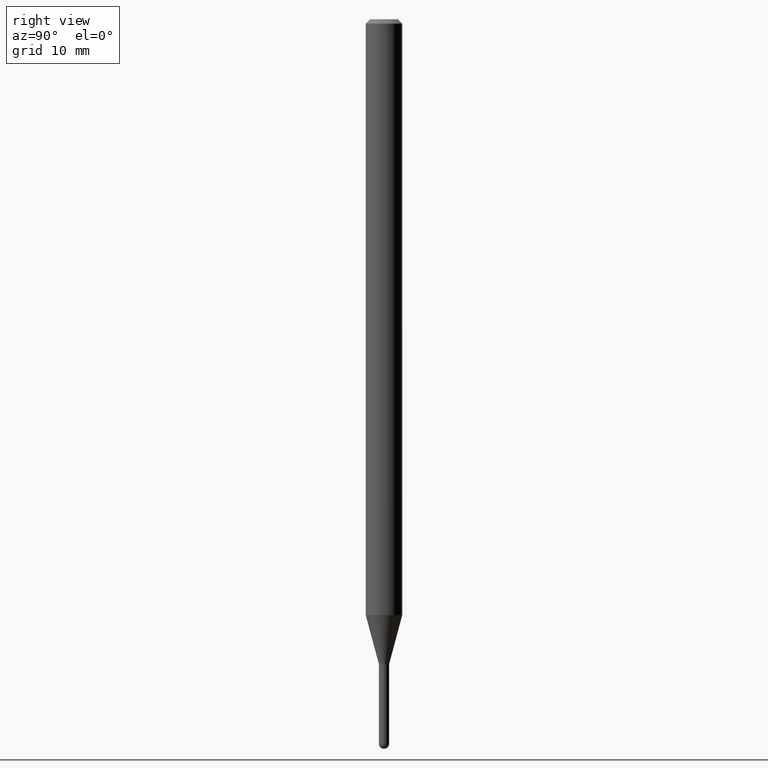
[diagram: clean part render]
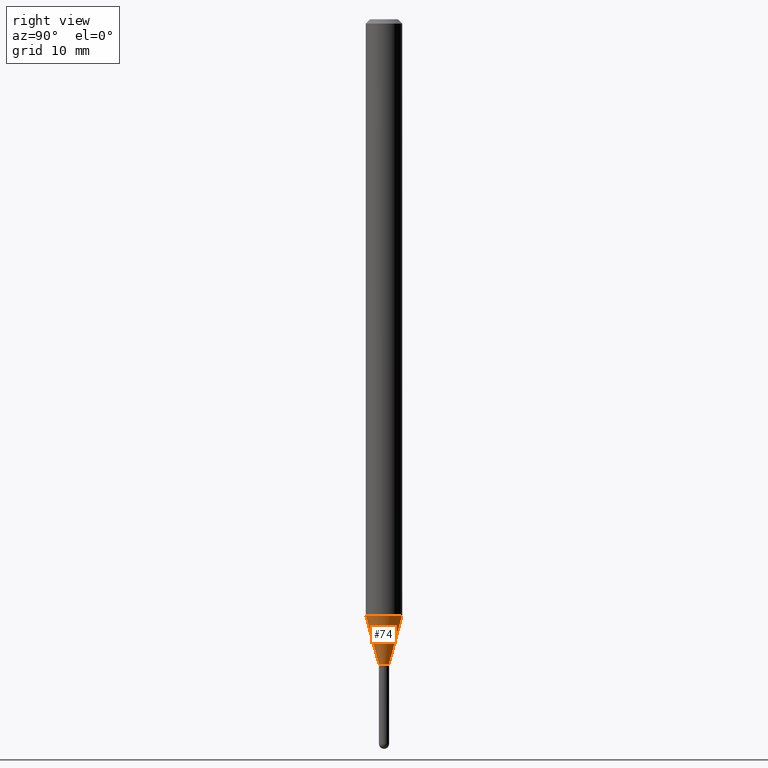
[diagram: same view with one face highlighted and labeled with its STEP entity id]
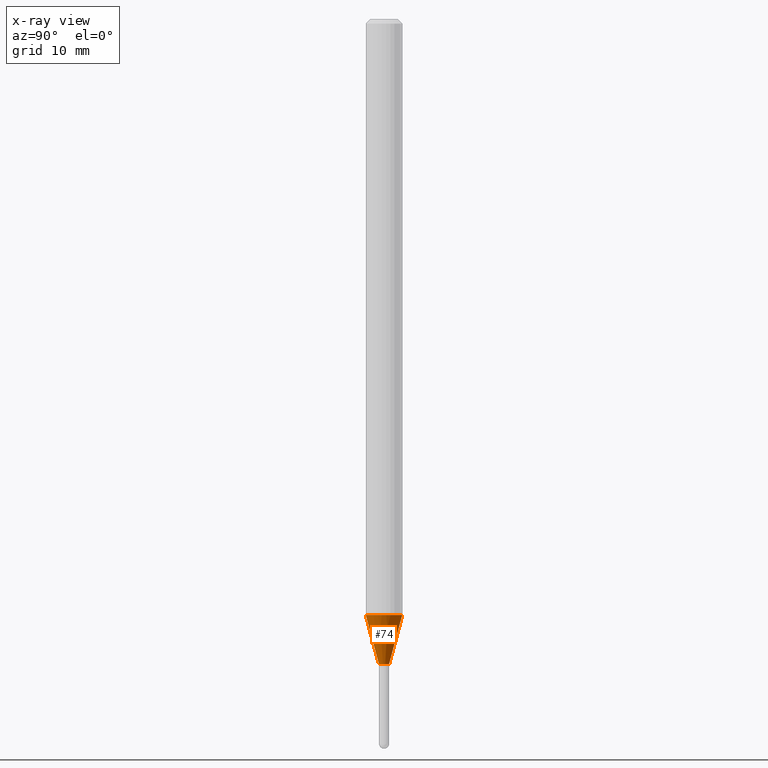
[diagram: x-ray of the same camera — body ghosted, the highlighted face saturated]
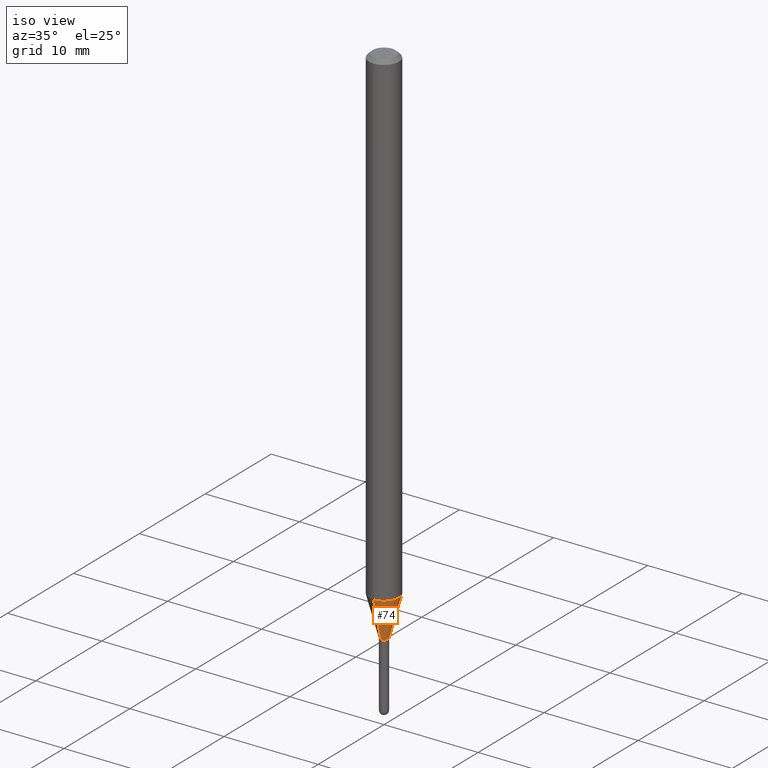
[diagram: same view with one face highlighted and labeled with its STEP entity id]
A machine part, right view. The second image highlights one B-rep face of the part: STEP entity #74.
The next image is the same camera in x-ray: the body ghosted, the highlighted face saturated — about 0% of this face is hidden behind the body in this view.
A second angle (iso view) of the same face is appended — the face is thin or edge-on in the first view.
In plain terms, the highlighted conical surface has half-angle 15 deg.
Its self-contained STEP definition (entity closure, byte-faithful):
#40 = VERTEX_POINT ( 'NONE', #492 ) ;
#48 = DIRECTION ( 'NONE',  ( 1.839019923739599921E-15, 0.2588190451025249028, 0.9659258262890670910 ) ) ;
#62 = EDGE_CURVE ( 'NONE', #181, #135, #384, .T. ) ;
#74 = ADVANCED_FACE ( 'NONE', ( #442 ), #100, .T. ) ;
#95 = CARTESIAN_POINT ( 'NONE',  ( 4.440892098501123144E-16, 0.06249999999999285294, -2.042057713659399809 ) ) ;
#98 = EDGE_CURVE ( 'NONE', #253, #135, #169, .T. ) ;
#99 = AXIS2_PLACEMENT_3D ( 'NONE', #215, #133, #441 ) ;
#100 = CONICAL_SURFACE ( 'NONE', #99, 0.01749999999999965125, 0.2617993877991502405 ) ;
#109 = DIRECTION ( 'NONE',  ( -2.445439854335356088E-29, 3.491522799539868353E-15, 1.000000000000000000 ) ) ;
#125 = DIRECTION ( 'NONE',  ( -2.445439854335356088E-29, 3.491522799539868353E-15, 1.000000000000000000 ) ) ;
#133 = DIRECTION ( 'NONE',  ( -2.445439854335356088E-29, 3.491522799539868353E-15, 1.000000000000000000 ) ) ;
#135 = VERTEX_POINT ( 'NONE', #95 ) ;
#169 = LINE ( 'NONE', #445, #283 ) ;
#177 = ORIENTED_EDGE ( 'NONE', *, *, #378, .F. ) ;
#181 = VERTEX_POINT ( 'NONE', #269 ) ;
#189 = LINE ( 'NONE', #431, #419 ) ;
#192 = ORIENTED_EDGE ( 'NONE', *, *, #62, .F. ) ;
#193 = CARTESIAN_POINT ( 'NONE',  ( 5.404422078081136622E-29, -7.716265386983106677E-15, -2.209999999999999520 ) ) ;
#195 = DIRECTION ( 'NONE',  ( -6.982962677686265922E-15, -1.000000000000000000, 0.000000000000000000 ) ) ;
#200 = CIRCLE ( 'NONE', #335, 0.01749999999999965125 ) ;
#215 = CARTESIAN_POINT ( 'NONE',  ( 5.404422078081136622E-29, -7.716265386983106677E-15, -2.209999999999999520 ) ) ;
#246 = CARTESIAN_POINT ( 'NONE',  ( 4.993729317835632026E-29, -7.129891065218049224E-15, -2.042057713659399365 ) ) ;
#253 = VERTEX_POINT ( 'NONE', #459 ) ;
#269 = CARTESIAN_POINT ( 'NONE',  ( -4.364351673553418233E-16, -0.06250000000000713318, -2.042057713659398921 ) ) ;
#277 = ORIENTED_EDGE ( 'NONE', *, *, #477, .T. ) ;
#283 = VECTOR ( 'NONE', #48, 39.37007874015748143 ) ;
#287 = DIRECTION ( 'NONE',  ( -6.982962677686265922E-15, -1.000000000000000000, 4.370956789862821150E-15 ) ) ;
#310 = ORIENTED_EDGE ( 'NONE', *, *, #98, .T. ) ;
#335 = AXIS2_PLACEMENT_3D ( 'NONE', #193, #109, #195 ) ;
#355 = EDGE_LOOP ( 'NONE', ( #277, #310, #192, #177 ) ) ;
#378 = EDGE_CURVE ( 'NONE', #40, #181, #189, .T. ) ;
#384 = CIRCLE ( 'NONE', #506, 0.06250000000000000000 ) ;
#419 = VECTOR ( 'NONE', #427, 39.37007874015748143 ) ;
#427 = DIRECTION ( 'NONE',  ( -1.807323732225329745E-15, -0.2588190451025181305, 0.9659258262890689783 ) ) ;
#431 = CARTESIAN_POINT ( 'NONE',  ( -1.222018468594531603E-16, -0.01750000000000736730, -2.209999999999999520 ) ) ;
#441 = DIRECTION ( 'NONE',  ( -6.982962677686265922E-15, -1.000000000000000000, 0.000000000000000000 ) ) ;
#442 = FACE_OUTER_BOUND ( 'NONE', #355, .T. ) ;
#445 = CARTESIAN_POINT ( 'NONE',  ( 1.243449787580690915E-16, 0.01749999999999193520, -2.209999999999999520 ) ) ;
#459 = CARTESIAN_POINT ( 'NONE',  ( 2.842170943040908632E-16, 0.01749999999999193520, -2.209999999999999520 ) ) ;
#477 = EDGE_CURVE ( 'NONE', #40, #253, #200, .T. ) ;
#492 = CARTESIAN_POINT ( 'NONE',  ( -1.222018468594531603E-16, -0.01750000000000736730, -2.209999999999999520 ) ) ;
#506 = AXIS2_PLACEMENT_3D ( 'NONE', #246, #125, #287 ) ;